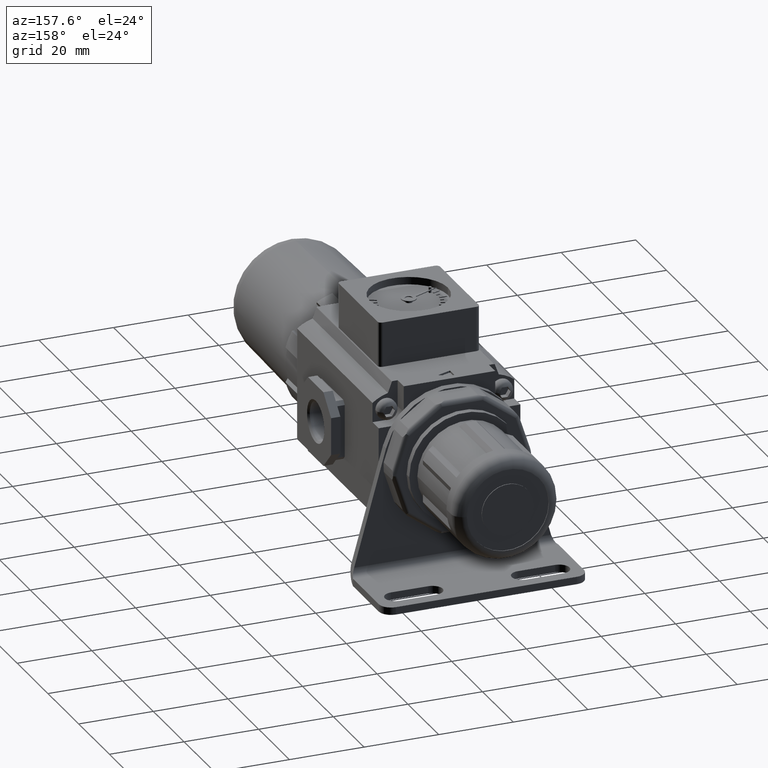
[diagram: clean part render]
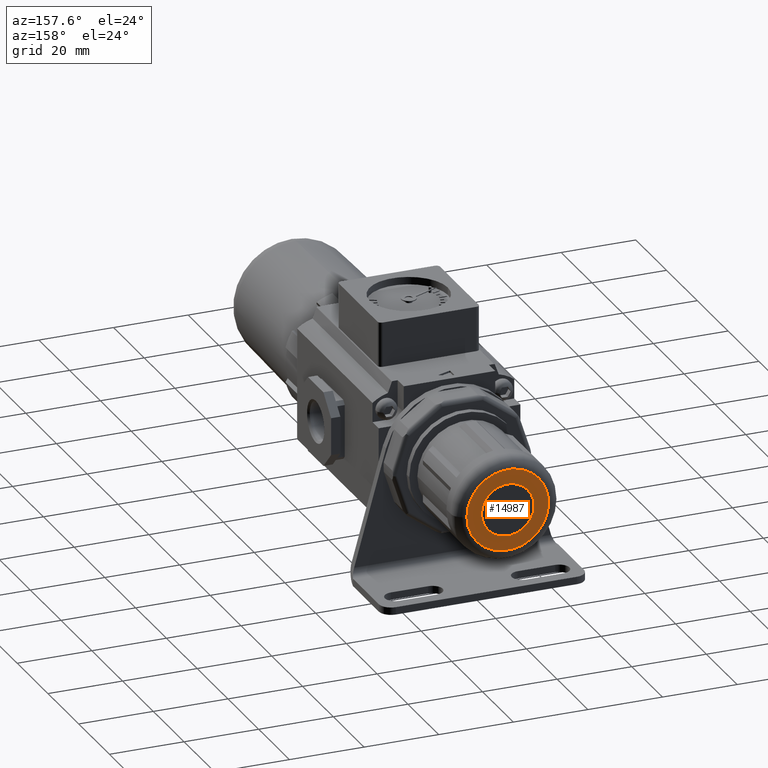
[diagram: same view with one face highlighted and labeled with its STEP entity id]
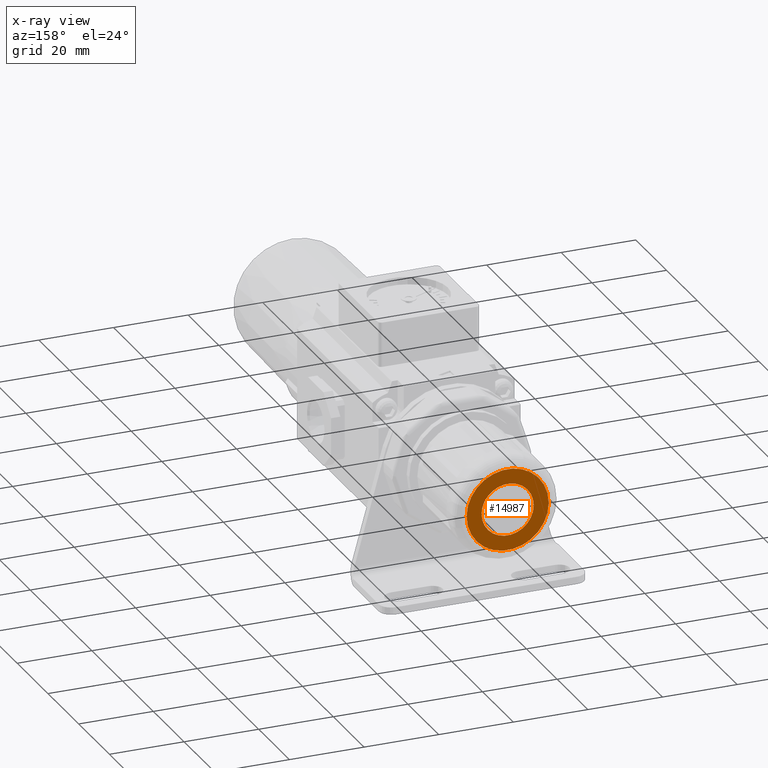
[diagram: x-ray of the same camera — body ghosted, the highlighted face saturated]
A machine part, auxiliary view. The second image highlights one B-rep face of the part: STEP entity #14987.
The next image is the same camera in x-ray: the body ghosted, the highlighted face saturated — about 0% of this face is hidden behind the body in this view.
In plain terms, the highlighted planar face has unit normal (-0, 1, 0).
Its self-contained STEP definition (entity closure, byte-faithful):
#115 = EDGE_LOOP ( 'NONE', ( #3770, #12580 ) ) ;
#690 = EDGE_LOOP ( 'NONE', ( #13090, #11540 ) ) ;
#770 = DIRECTION ( 'NONE',  ( -3.652049423109068300E-016, 1.000000000000000000, 0.0000000000000000000 ) ) ;
#1386 = CIRCLE ( 'NONE', #13710, 7.000000000000000000 ) ;
#1835 = FACE_OUTER_BOUND ( 'NONE', #115, .T. ) ;
#2753 = DIRECTION ( 'NONE',  ( -3.652049423109068300E-016, 1.000000000000000000, 0.0000000000000000000 ) ) ;
#3214 = CARTESIAN_POINT ( 'NONE',  ( -11.00000000000002300, 67.79999999999998300, 0.0000000000000000000 ) ) ;
#3770 = ORIENTED_EDGE ( 'NONE', *, *, #9238, .T. ) ;
#3787 = CARTESIAN_POINT ( 'NONE',  ( -2.476089508867948000E-014, 67.79999999999998300, 0.0000000000000000000 ) ) ;
#3890 = DIRECTION ( 'NONE',  ( -3.652049423109068300E-016, 1.000000000000000000, 0.0000000000000000000 ) ) ;
#4505 = AXIS2_PLACEMENT_3D ( 'NONE', #7039, #15935, #8320 ) ;
#5500 = CIRCLE ( 'NONE', #16039, 11.00000000000000000 ) ;
#6319 = CARTESIAN_POINT ( 'NONE',  ( -2.476089508867948000E-014, 67.79999999999998300, 0.0000000000000000000 ) ) ;
#7039 = CARTESIAN_POINT ( 'NONE',  ( -2.476089508867948000E-014, 67.79999999999998300, 0.0000000000000000000 ) ) ;
#7616 = AXIS2_PLACEMENT_3D ( 'NONE', #6319, #3890, #12791 ) ;
#7647 = VERTEX_POINT ( 'NONE', #12143 ) ;
#8320 = DIRECTION ( 'NONE',  ( -1.000000000000000000, 0.0000000000000000000, 0.0000000000000000000 ) ) ;
#8382 = CARTESIAN_POINT ( 'NONE',  ( -2.476089508867947700E-014, 67.79999999999998300, 0.0000000000000000000 ) ) ;
#8947 = PLANE ( 'NONE',  #7616 ) ;
#9238 = EDGE_CURVE ( 'NONE', #10191, #10042, #5500, .T. ) ;
#9668 = DIRECTION ( 'NONE',  ( -1.000000000000000000, 0.0000000000000000000, 0.0000000000000000000 ) ) ;
#9763 = EDGE_CURVE ( 'NONE', #15111, #7647, #1386, .T. ) ;
#10042 = VERTEX_POINT ( 'NONE', #15601 ) ;
#10191 = VERTEX_POINT ( 'NONE', #3214 ) ;
#10373 = CARTESIAN_POINT ( 'NONE',  ( -2.476089508867947700E-014, 67.79999999999998300, 0.0000000000000000000 ) ) ;
#11540 = ORIENTED_EDGE ( 'NONE', *, *, #9763, .F. ) ;
#11648 = DIRECTION ( 'NONE',  ( -1.000000000000000000, 0.0000000000000000000, 0.0000000000000000000 ) ) ;
#11936 = CARTESIAN_POINT ( 'NONE',  ( -7.000000000000024900, 67.79999999999998300, 8.572527594031473200E-016 ) ) ;
#12143 = CARTESIAN_POINT ( 'NONE',  ( 6.999999999999975100, 67.79999999999998300, 0.0000000000000000000 ) ) ;
#12551 = AXIS2_PLACEMENT_3D ( 'NONE', #10373, #2753, #11648 ) ;
#12580 = ORIENTED_EDGE ( 'NONE', *, *, #14711, .T. ) ;
#12679 = DIRECTION ( 'NONE',  ( -3.652049423109068300E-016, 1.000000000000000000, 0.0000000000000000000 ) ) ;
#12784 = CIRCLE ( 'NONE', #12551, 7.000000000000000000 ) ;
#12791 = DIRECTION ( 'NONE',  ( -1.000000000000000000, -3.652049423109068300E-016, 0.0000000000000000000 ) ) ;
#13090 = ORIENTED_EDGE ( 'NONE', *, *, #16471, .F. ) ;
#13710 = AXIS2_PLACEMENT_3D ( 'NONE', #8382, #770, #9668 ) ;
#14711 = EDGE_CURVE ( 'NONE', #10042, #10191, #16363, .T. ) ;
#14987 = ADVANCED_FACE ( 'NONE', ( #15343, #1835 ), #8947, .T. ) ;
#15111 = VERTEX_POINT ( 'NONE', #11936 ) ;
#15290 = DIRECTION ( 'NONE',  ( -1.000000000000000000, 0.0000000000000000000, 0.0000000000000000000 ) ) ;
#15343 = FACE_BOUND ( 'NONE', #690, .T. ) ;
#15601 = CARTESIAN_POINT ( 'NONE',  ( 10.99999999999997500, 67.79999999999998300, 1.347111479062088400E-015 ) ) ;
#15935 = DIRECTION ( 'NONE',  ( -3.652049423109068300E-016, 1.000000000000000000, 0.0000000000000000000 ) ) ;
#16039 = AXIS2_PLACEMENT_3D ( 'NONE', #3787, #12679, #15290 ) ;
#16363 = CIRCLE ( 'NONE', #4505, 11.00000000000000000 ) ;
#16471 = EDGE_CURVE ( 'NONE', #7647, #15111, #12784, .T. ) ;